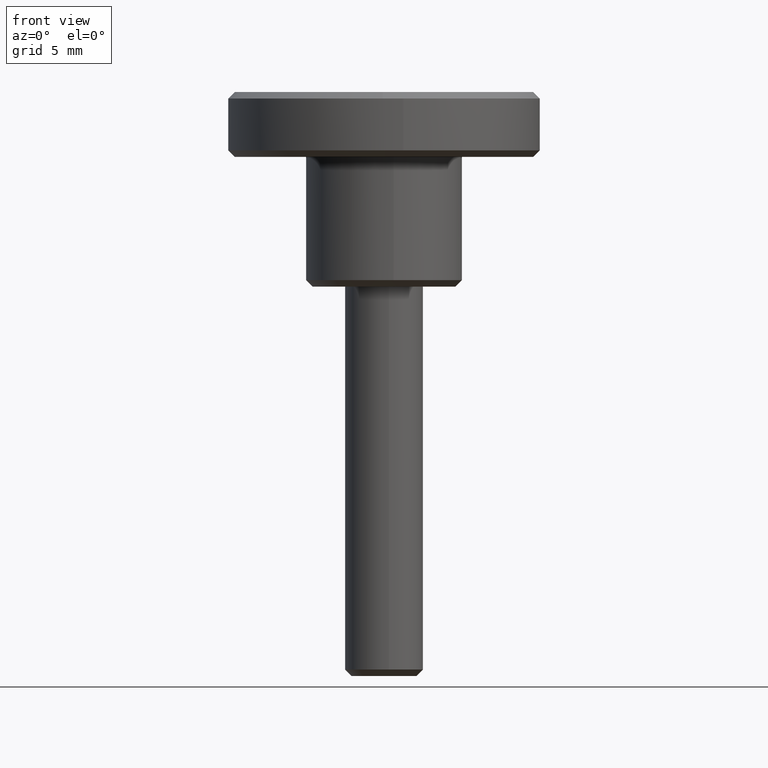
[diagram: clean part render]
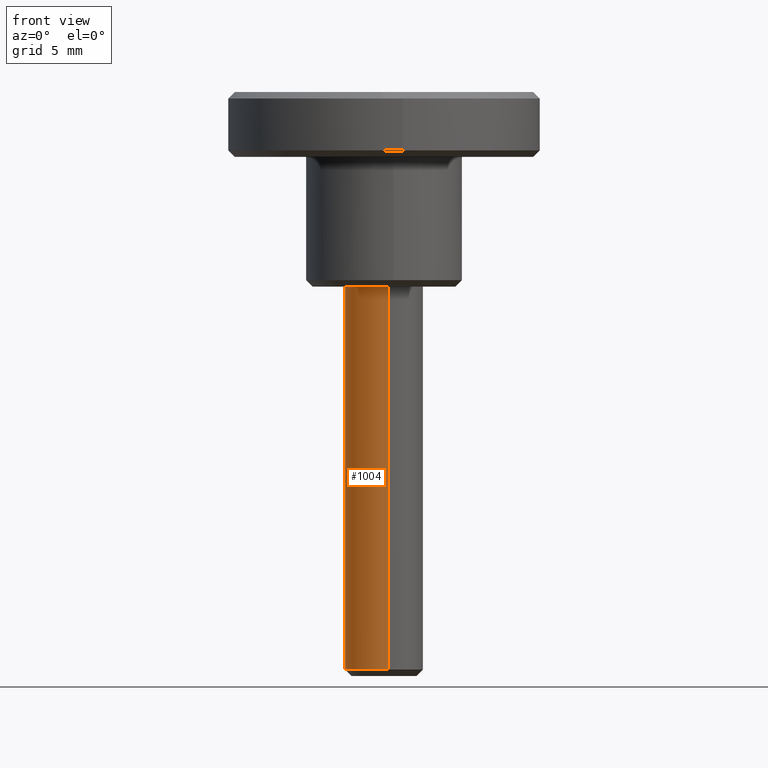
[diagram: same view with one face highlighted and labeled with its STEP entity id]
A machine part, front view. The second image highlights one B-rep face of the part: STEP entity #1004.
In plain terms, the highlighted face is a freeform B-spline surface patch.
Its self-contained STEP definition (entity closure, byte-faithful):
#66=CARTESIAN_POINT('',(-1.212646295965864,-2.743991428718648,-29.499999999999780));
#67=VERTEX_POINT('',#66);
#68=CARTESIAN_POINT('',(0.372384006255850,-2.976798641474569,-29.500000000000000));
#69=VERTEX_POINT('',#68);
#70=CARTESIAN_POINT('',(-1.212646295965864,-2.743991428718648,-29.499999999999776));
#71=CARTESIAN_POINT('',(-0.633346851758118,-3.000000000000000,-29.499999999999993));
#72=CARTESIAN_POINT('',(0.0,-3.0,-29.500000000000000));
#73=CARTESIAN_POINT('',(0.186914782617034,-3.000000000000000,-29.500000000000000));
#74=CARTESIAN_POINT('',(0.372384006255850,-2.976798641474569,-29.500000000000007));
#82=(BOUNDED_CURVE()B_SPLINE_CURVE(2,(#70,#71,#72,#73,#74),.UNSPECIFIED.,.F.,.U.)B_SPLINE_CURVE_WITH_KNOTS((3,2,3),(0.181361578459687,0.250000000000000,0.271473928972555),.UNSPECIFIED.)CURVE()GEOMETRIC_REPRESENTATION_ITEM()RATIONAL_B_SPLINE_CURVE((0.883326595751625,0.919585087123133,1.0,0.974841727290628,0.954005430271121))REPRESENTATION_ITEM(''));
#83=EDGE_CURVE('',#67,#69,#82,.T.);
#126=CARTESIAN_POINT('',(-0.026179606532469,2.999885769192137,-29.500000000000021));
#127=VERTEX_POINT('',#126);
#184=CARTESIAN_POINT('',(-3.0,0.0,-29.500000000000000));
#185=VERTEX_POINT('',#184);
#186=CARTESIAN_POINT('',(-3.0,0.0,-29.500000000000000));
#187=CARTESIAN_POINT('',(-3.000000000000000,-1.954110007771510,-29.499999999999993));
#188=CARTESIAN_POINT('',(-1.212646295965864,-2.743991428718648,-29.499999999999776));
#196=(BOUNDED_CURVE()B_SPLINE_CURVE(2,(#186,#187,#188),.UNSPECIFIED.,.F.,.U.)B_SPLINE_CURVE_WITH_KNOTS((3,3),(0.0,0.181361578459687),.UNSPECIFIED.)CURVE()GEOMETRIC_REPRESENTATION_ITEM()RATIONAL_B_SPLINE_CURVE((1.0,0.787521694063415,0.883326595751625))REPRESENTATION_ITEM(''));
#197=EDGE_CURVE('',#185,#67,#196,.T.);
#199=CARTESIAN_POINT('',(-0.026179606532469,2.999885769192138,-29.500000000000021));
#200=CARTESIAN_POINT('',(-2.999999999999999,2.973933631636831,-29.499999999999986));
#201=CARTESIAN_POINT('',(-3.0,0.0,-29.500000000000000));
#209=(BOUNDED_CURVE()B_SPLINE_CURVE(2,(#199,#200,#201),.UNSPECIFIED.,.F.,.U.)B_SPLINE_CURVE_WITH_KNOTS((3,3),(0.751539894343759,1.0),.UNSPECIFIED.)CURVE()GEOMETRIC_REPRESENTATION_ITEM()RATIONAL_B_SPLINE_CURVE((0.996414028080106,0.708910879630452,1.0))REPRESENTATION_ITEM(''));
#210=EDGE_CURVE('',#127,#185,#209,.T.);
#898=CARTESIAN_POINT('',(-0.026179606560450,2.999885769191943,4.440892E-016));
#899=VERTEX_POINT('',#898);
#900=CARTESIAN_POINT('',(-0.026179606532469,2.999885769192137,-29.500000000000021));
#901=CARTESIAN_POINT('',(-0.026179606560450,2.999885769191943,4.440892E-016));
#902=QUASI_UNIFORM_CURVE('',1,(#900,#901),.UNSPECIFIED.,.F.,.U.);
#903=EDGE_CURVE('',#127,#899,#902,.T.);
#922=CARTESIAN_POINT('',(0.372381078570889,-2.976799007711753,-1.276270E-015));
#923=VERTEX_POINT('',#922);
#937=CARTESIAN_POINT('',(0.372384006255850,-2.976798641474569,-29.500000000000000));
#938=CARTESIAN_POINT('',(0.372381078570889,-2.976799007711753,-1.276270E-015));
#939=QUASI_UNIFORM_CURVE('',1,(#937,#938),.UNSPECIFIED.,.F.,.U.);
#940=EDGE_CURVE('',#69,#923,#939,.T.);
#945=CARTESIAN_POINT('',(-0.026179606495122,2.999885769192513,-30.237500000000001));
#946=CARTESIAN_POINT('',(-3.026065375687634,2.973706162697392,-30.237499999999997));
#947=CARTESIAN_POINT('',(-2.999885769192513,-0.026179606495122,-30.237500000000001));
#948=CARTESIAN_POINT('',(-2.973706162697392,-3.026065375687634,-30.237499999999997));
#949=CARTESIAN_POINT('',(0.026179606495122,-2.999885769192513,-30.237500000000001));
#950=CARTESIAN_POINT('',(0.199950476874521,-2.998369293780826,-30.237499999999997));
#951=CARTESIAN_POINT('',(0.372384006239488,-2.976798641476615,-30.237500000000004));
#952=CARTESIAN_POINT('',(-0.026179606495122,2.999885769192513,0.755937500000002));
#953=CARTESIAN_POINT('',(-3.026065375687634,2.973706162697392,0.755937500000002));
#954=CARTESIAN_POINT('',(-2.999885769192513,-0.026179606495122,0.755937500000002));
#955=CARTESIAN_POINT('',(-2.973706162697392,-3.026065375687634,0.755937500000002));
#956=CARTESIAN_POINT('',(0.026179606495122,-2.999885769192513,0.755937500000002));
#957=CARTESIAN_POINT('',(0.199950476874521,-2.998369293780826,0.755937500000002));
#958=CARTESIAN_POINT('',(0.372384006239488,-2.976798641476615,0.755937500000002));
#966=(BOUNDED_SURFACE()B_SPLINE_SURFACE(2,1,((#945,#952),(#946,#953),(#947,#954),(#948,#955),(#949,#956),(#950,#957),(#951,#958)),.UNSPECIFIED.,.F.,.F.,.U.)B_SPLINE_SURFACE_WITH_KNOTS((3,2,2,3),(2,2),(0.0,4.970562748477139,9.941125496954278,10.338770516832451),(0.0,30.993437500000010),.UNSPECIFIED.)GEOMETRIC_REPRESENTATION_ITEM()RATIONAL_B_SPLINE_SURFACE(((1.0,1.0),(0.707106781186548,0.707106781186548),(1.0,1.0),(0.707106781186548,0.707106781186548),(1.0,1.0),(0.976568542494924,0.976568542494924),(0.956886118190660,0.956886118190660)))REPRESENTATION_ITEM('')SURFACE());
#967=ORIENTED_EDGE('',*,*,#197,.T.);
#968=ORIENTED_EDGE('',*,*,#83,.T.);
#969=ORIENTED_EDGE('',*,*,#940,.T.);
#970=CARTESIAN_POINT('',(-3.0,0.0,0.0));
#971=VERTEX_POINT('',#970);
#972=CARTESIAN_POINT('',(0.372381078570889,-2.976799007711752,-1.276270E-015));
#973=CARTESIAN_POINT('',(0.186913301630439,-3.000000000000000,0.0));
#974=CARTESIAN_POINT('',(0.0,-3.0,0.0));
#975=CARTESIAN_POINT('',(-3.0,-3.0,0.0));
#976=CARTESIAN_POINT('',(-3.0,0.0,0.0));
#984=(BOUNDED_CURVE()B_SPLINE_CURVE(2,(#972,#973,#974,#975,#976),.UNSPECIFIED.,.F.,.U.)B_SPLINE_CURVE_WITH_KNOTS((3,2,3),(0.728526236891847,0.750000000000000,1.0),.UNSPECIFIED.)CURVE()GEOMETRIC_REPRESENTATION_ITEM()RATIONAL_B_SPLINE_CURVE((0.954005752150058,0.974841921612862,1.0,0.707106781186548,1.0))REPRESENTATION_ITEM(''));
#985=EDGE_CURVE('',#923,#971,#984,.T.);
#986=ORIENTED_EDGE('',*,*,#985,.T.);
#987=CARTESIAN_POINT('',(-3.0,0.0,0.0));
#988=CARTESIAN_POINT('',(-3.000000000000001,2.973933631655402,0.0));
#989=CARTESIAN_POINT('',(-0.026179606560450,2.999885769191943,4.440892E-016));
#997=(BOUNDED_CURVE()B_SPLINE_CURVE(2,(#987,#988,#989),.UNSPECIFIED.,.F.,.U.)B_SPLINE_CURVE_WITH_KNOTS((3,3),(0.0,0.248460105657341),.UNSPECIFIED.)CURVE()GEOMETRIC_REPRESENTATION_ITEM()RATIONAL_B_SPLINE_CURVE((1.0,0.708910879629163,0.996414028082651))REPRESENTATION_ITEM(''));
#998=EDGE_CURVE('',#971,#899,#997,.T.);
#999=ORIENTED_EDGE('',*,*,#998,.T.);
#1000=ORIENTED_EDGE('',*,*,#903,.F.);
#1001=ORIENTED_EDGE('',*,*,#210,.T.);
#1002=EDGE_LOOP('',(#967,#968,#969,#986,#999,#1000,#1001));
#1003=FACE_OUTER_BOUND('',#1002,.T.);
#1004=ADVANCED_FACE('',(#1003),#966,.T.);